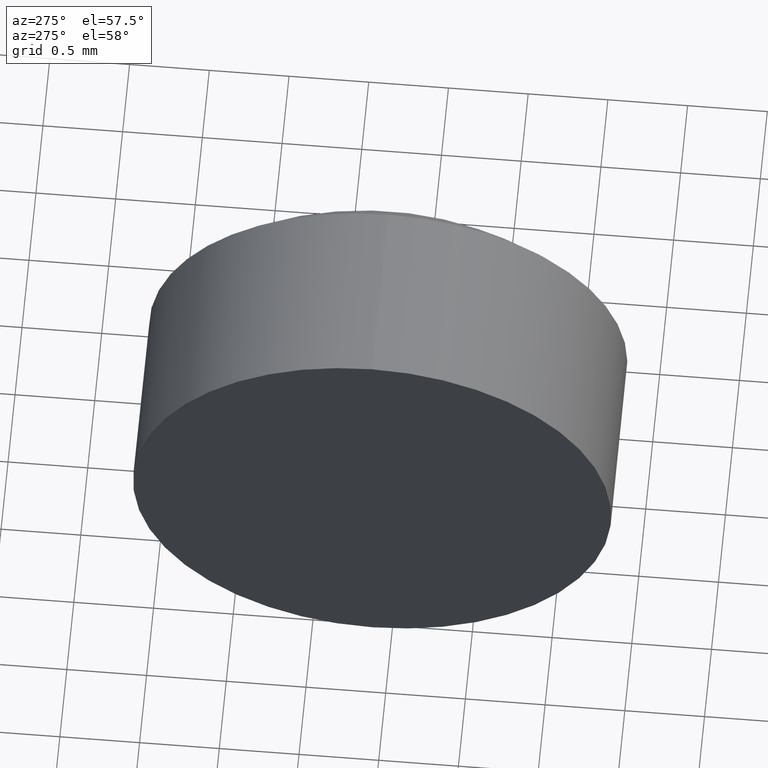
[diagram: clean part render]
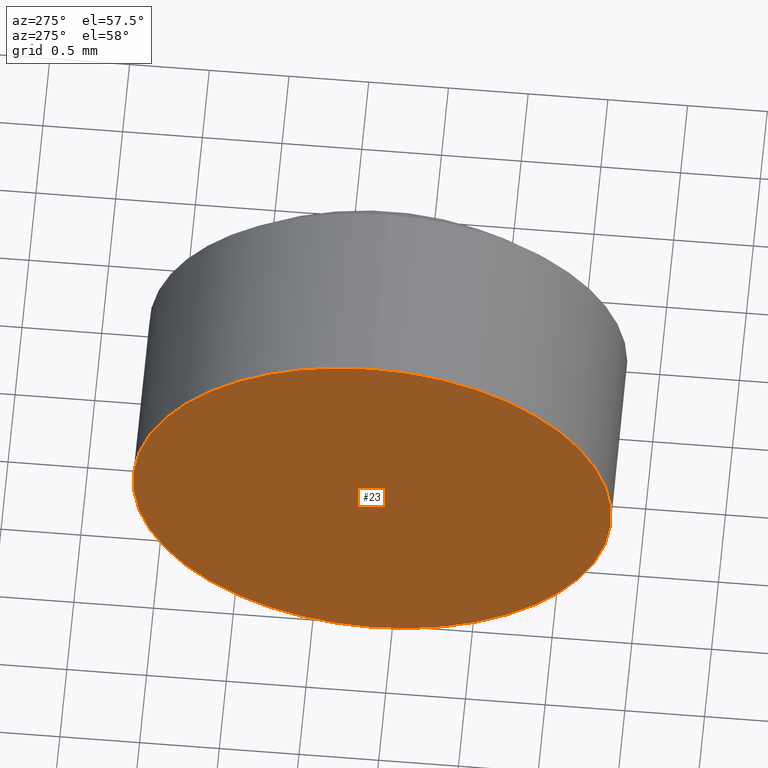
[diagram: same view with one face highlighted and labeled with its STEP entity id]
A machine part, auxiliary view. The second image highlights one B-rep face of the part: STEP entity #23.
In plain terms, the highlighted planar face has unit normal (1, 0, 0).
Its self-contained STEP definition (entity closure, byte-faithful):
#5 = VERTEX_POINT ( 'NONE', #108 ) ;
#10 = DIRECTION ( 'NONE',  ( 1.000000000000000000, 0.0000000000000000000, 0.0000000000000000000 ) ) ;
#23 = ADVANCED_FACE ( 'NONE', ( #160 ), #137, .F. ) ;
#36 = AXIS2_PLACEMENT_3D ( 'NONE', #61, #139, #104 ) ;
#37 = EDGE_CURVE ( 'NONE', #173, #5, #185, .T. ) ;
#46 = EDGE_CURVE ( 'NONE', #5, #173, #150, .T. ) ;
#61 = CARTESIAN_POINT ( 'NONE',  ( 531.9345710379045600, 125.1230185233483600, 0.0000000000000000000 ) ) ;
#64 = CARTESIAN_POINT ( 'NONE',  ( 531.9345710379045600, 125.1230185233483600, -1.499984999999981500 ) ) ;
#74 = CARTESIAN_POINT ( 'NONE',  ( 531.9345710379045600, 125.1230185233483600, 0.0000000000000000000 ) ) ;
#75 = DIRECTION ( 'NONE',  ( 0.0000000000000000000, 0.0000000000000000000, 1.000000000000000000 ) ) ;
#101 = ORIENTED_EDGE ( 'NONE', *, *, #46, .T. ) ;
#104 = DIRECTION ( 'NONE',  ( 0.0000000000000000000, 0.0000000000000000000, 1.000000000000000000 ) ) ;
#108 = CARTESIAN_POINT ( 'NONE',  ( 531.9345710379045600, 125.1230185233483600, 1.499984999999981500 ) ) ;
#121 = DIRECTION ( 'NONE',  ( -1.000000000000000000, -0.0000000000000000000, -0.0000000000000000000 ) ) ;
#130 = ORIENTED_EDGE ( 'NONE', *, *, #37, .T. ) ;
#131 = AXIS2_PLACEMENT_3D ( 'NONE', #182, #10, #169 ) ;
#137 = PLANE ( 'NONE',  #131 ) ;
#139 = DIRECTION ( 'NONE',  ( -1.000000000000000000, -0.0000000000000000000, -0.0000000000000000000 ) ) ;
#142 = AXIS2_PLACEMENT_3D ( 'NONE', #74, #121, #75 ) ;
#150 = CIRCLE ( 'NONE', #36, 1.499984999999981500 ) ;
#160 = FACE_OUTER_BOUND ( 'NONE', #166, .T. ) ;
#166 = EDGE_LOOP ( 'NONE', ( #101, #130 ) ) ;
#169 = DIRECTION ( 'NONE',  ( 0.0000000000000000000, 0.0000000000000000000, -1.000000000000000000 ) ) ;
#173 = VERTEX_POINT ( 'NONE', #64 ) ;
#182 = CARTESIAN_POINT ( 'NONE',  ( 531.9345710379045600, 125.1230185233483600, 0.0000000000000000000 ) ) ;
#185 = CIRCLE ( 'NONE', #142, 1.499984999999981500 ) ;